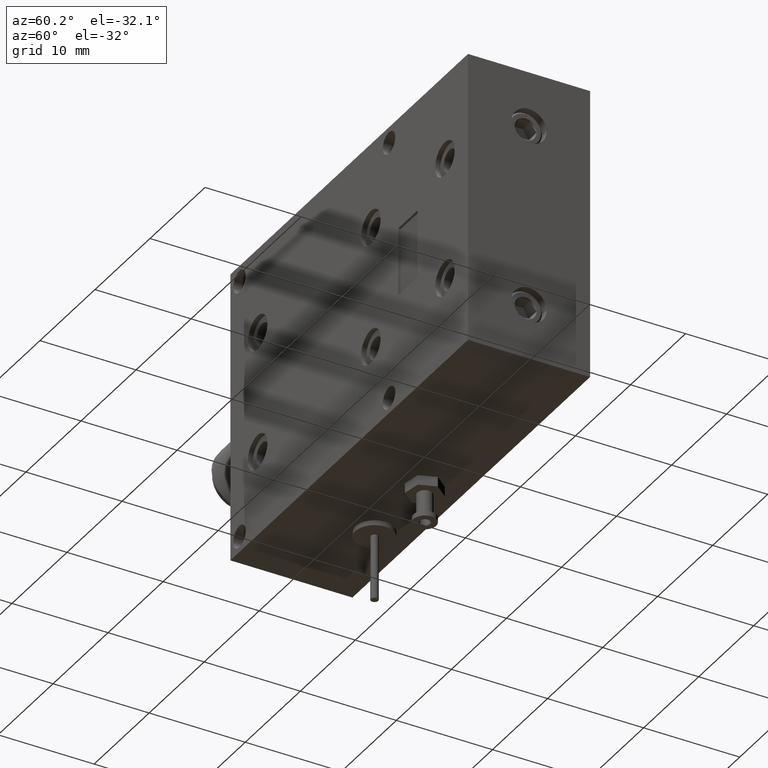
[diagram: clean part render]
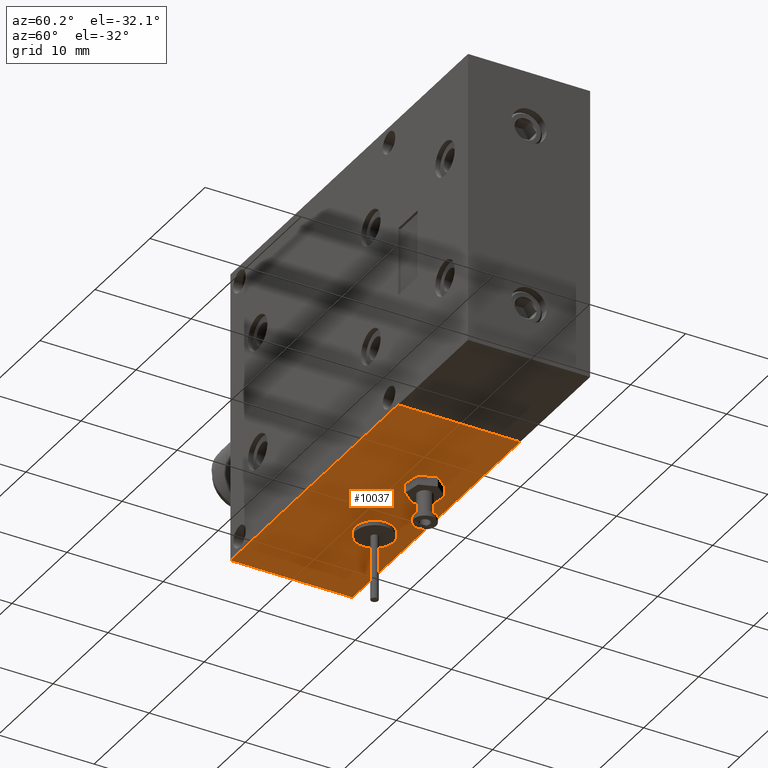
[diagram: same view with one face highlighted and labeled with its STEP entity id]
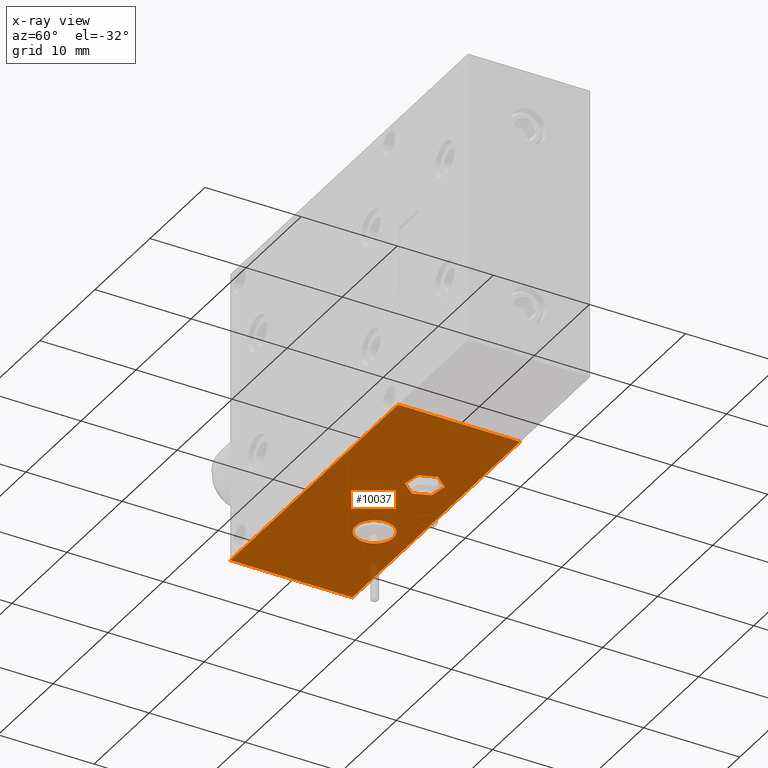
[diagram: x-ray of the same camera — body ghosted, the highlighted face saturated]
A machine part, auxiliary view. The second image highlights one B-rep face of the part: STEP entity #10037.
The next image is the same camera in x-ray: the body ghosted, the highlighted face saturated — about 1% of this face is hidden behind the body in this view.
In plain terms, the highlighted planar face has unit normal (0, -0, 1).
Its self-contained STEP definition (entity closure, byte-faithful):
#49 = VECTOR ( 'NONE', #12817, 39.37007874015748100 ) ;
#195 = VECTOR ( 'NONE', #5817, 39.37007874015747400 ) ;
#244 = ORIENTED_EDGE ( 'NONE', *, *, #7213, .F. ) ;
#344 = ORIENTED_EDGE ( 'NONE', *, *, #1367, .F. ) ;
#420 = CARTESIAN_POINT ( 'NONE',  ( -0.1799999999999999400, 0.3500000000000000300, -0.5999999999999999800 ) ) ;
#421 = ORIENTED_EDGE ( 'NONE', *, *, #1352, .F. ) ;
#466 = EDGE_CURVE ( 'NONE', #1565, #599, #12813, .T. ) ;
#523 = EDGE_CURVE ( 'NONE', #5677, #5970, #8722, .T. ) ;
#599 = VERTEX_POINT ( 'NONE', #8600 ) ;
#679 = VERTEX_POINT ( 'NONE', #8770 ) ;
#979 = CARTESIAN_POINT ( 'NONE',  ( -0.2375162163614036900, 0.2973133332287173400, -0.5999999999999999800 ) ) ;
#1326 = DIRECTION ( 'NONE',  ( 2.775557561562899400E-017, 1.358984317008243300E-032, -1.000000000000000000 ) ) ;
#1331 = CARTESIAN_POINT ( 'NONE',  ( 0.5999999999999999800, 0.5000000000000000000, -0.6000000000000002000 ) ) ;
#1352 = EDGE_CURVE ( 'NONE', #8718, #1959, #10681, .T. ) ;
#1367 = EDGE_CURVE ( 'NONE', #1959, #5677, #9011, .T. ) ;
#1418 = DIRECTION ( 'NONE',  ( -0.0000000000000000000, -1.000000000000000000, -0.0000000000000000000 ) ) ;
#1444 = VECTOR ( 'NONE', #2167, 39.37007874015748100 ) ;
#1476 = VECTOR ( 'NONE', #1418, 39.37007874015748100 ) ;
#1565 = VERTEX_POINT ( 'NONE', #5831 ) ;
#1684 = CARTESIAN_POINT ( 'NONE',  ( 0.2264877543224575500, 0.2947983511895870300, -0.6000000000000002000 ) ) ;
#1866 = VECTOR ( 'NONE', #11768, 39.37007874015747400 ) ;
#1938 = CARTESIAN_POINT ( 'NONE',  ( -0.1224837836385961600, 0.4026866667712827300, -0.5999999999999999800 ) ) ;
#1959 = VERTEX_POINT ( 'NONE', #6593 ) ;
#2167 = DIRECTION ( 'NONE',  ( 0.3403431760598529800, 0.9403012934743267800, -4.723210379196310700E-018 ) ) ;
#2224 = CARTESIAN_POINT ( 'NONE',  ( 0.1335122456775428000, 0.4052016488104132100, -0.6000000000000000900 ) ) ;
#2294 = EDGE_CURVE ( 'NONE', #8833, #3688, #5593, .T. ) ;
#2392 = PLANE ( 'NONE',  #11709 ) ;
#2465 = LINE ( 'NONE', #4516, #1476 ) ;
#2627 = CARTESIAN_POINT ( 'NONE',  ( 0.1554378469606241000, 0.2821395993866556200, -0.6000000000000002000 ) ) ;
#2789 = CARTESIAN_POINT ( 'NONE',  ( 0.2264877543224575500, 0.2947983511895870300, -0.6000000000000002000 ) ) ;
#2882 = VECTOR ( 'NONE', #8423, 39.37007874015748100 ) ;
#3340 = VERTEX_POINT ( 'NONE', #6479 ) ;
#3688 = VERTEX_POINT ( 'NONE', #979 ) ;
#3906 = EDGE_CURVE ( 'NONE', #3340, #599, #2465, .T. ) ;
#4402 = ORIENTED_EDGE ( 'NONE', *, *, #11303, .F. ) ;
#4430 = DIRECTION ( 'NONE',  ( 2.775557561562899400E-017, 1.358984317008243300E-032, -1.000000000000000000 ) ) ;
#4516 = CARTESIAN_POINT ( 'NONE',  ( -0.5999999999999998700, 0.5000000000000000000, -0.5999999999999999800 ) ) ;
#4813 = VECTOR ( 'NONE', #6583, 39.37007874015748100 ) ;
#5012 = FACE_BOUND ( 'NONE', #6195, .T. ) ;
#5077 = ORIENTED_EDGE ( 'NONE', *, *, #5415, .F. ) ;
#5171 = ORIENTED_EDGE ( 'NONE', *, *, #7030, .F. ) ;
#5223 = ORIENTED_EDGE ( 'NONE', *, *, #2294, .F. ) ;
#5415 = EDGE_CURVE ( 'NONE', #13263, #3340, #13103, .T. ) ;
#5593 = CIRCLE ( 'NONE', #9591, 0.07800000000000000000 ) ;
#5616 = DIRECTION ( 'NONE',  ( 0.7373873892487662300, 0.6754700868113170400, 0.0000000000000000000 ) ) ;
#5635 = ORIENTED_EDGE ( 'NONE', *, *, #466, .T. ) ;
#5677 = VERTEX_POINT ( 'NONE', #12665 ) ;
#5817 = DIRECTION ( 'NONE',  ( -0.9844963953900602900, -0.1754048102646509300, 1.366263207278148200E-017 ) ) ;
#5831 = CARTESIAN_POINT ( 'NONE',  ( 0.5999999999999999800, 0.0000000000000000000, -0.6000000000000002000 ) ) ;
#5970 = VERTEX_POINT ( 'NONE', #2789 ) ;
#6195 = EDGE_LOOP ( 'NONE', ( #421, #4402, #10197, #244, #11987, #344 ) ) ;
#6479 = CARTESIAN_POINT ( 'NONE',  ( -0.5999999999999998700, 0.5000000000000000000, -0.5999999999999999800 ) ) ;
#6558 = LINE ( 'NONE', #10733, #49 ) ;
#6583 = DIRECTION ( 'NONE',  ( -1.000000000000000000, 0.0000000000000000000, 2.276539994720219800E-016 ) ) ;
#6593 = CARTESIAN_POINT ( 'NONE',  ( 0.2045621530393761900, 0.4178604006133446200, -0.6000000000000002000 ) ) ;
#6648 = VERTEX_POINT ( 'NONE', #2627 ) ;
#6768 = FACE_BOUND ( 'NONE', #10202, .T. ) ;
#6851 = CIRCLE ( 'NONE', #6875, 0.07800000000000000000 ) ;
#6875 = AXIS2_PLACEMENT_3D ( 'NONE', #10766, #1326, #8512 ) ;
#7002 = CARTESIAN_POINT ( 'NONE',  ( 0.5999999999999999800, 0.5000000000000000000, -0.6000000000000002000 ) ) ;
#7007 = ORIENTED_EDGE ( 'NONE', *, *, #3906, .F. ) ;
#7030 = EDGE_CURVE ( 'NONE', #3688, #8833, #6851, .T. ) ;
#7213 = EDGE_CURVE ( 'NONE', #5970, #6648, #10283, .T. ) ;
#7323 = CARTESIAN_POINT ( 'NONE',  ( 0.5999999999999999800, 0.0000000000000000000, -0.6000000000000002000 ) ) ;
#7367 = VECTOR ( 'NONE', #7665, 39.37007874015748100 ) ;
#7442 = CARTESIAN_POINT ( 'NONE',  ( 0.1554378469606241000, 0.2821395993866556200, -0.6000000000000002000 ) ) ;
#7665 = DIRECTION ( 'NONE',  ( -0.6441532193302071900, 0.7648964832096758500, 8.939421693585171800E-018 ) ) ;
#8211 = CARTESIAN_POINT ( 'NONE',  ( 0.1089500926381667000, 0.3373412481970686200, -0.6000000000000002000 ) ) ;
#8290 = EDGE_LOOP ( 'NONE', ( #5635, #7007, #5077, #12750 ) ) ;
#8316 = EDGE_CURVE ( 'NONE', #6648, #679, #9477, .T. ) ;
#8423 = DIRECTION ( 'NONE',  ( -1.000000000000000000, 0.0000000000000000000, 2.276539994720219800E-016 ) ) ;
#8512 = DIRECTION ( 'NONE',  ( 0.7373873892487662300, 0.6754700868113170400, 0.0000000000000000000 ) ) ;
#8600 = CARTESIAN_POINT ( 'NONE',  ( -0.5999999999999998700, 0.0000000000000000000, -0.5999999999999999800 ) ) ;
#8613 = DIRECTION ( 'NONE',  ( 2.276539994720219800E-016, -0.0000000000000000000, 1.000000000000000000 ) ) ;
#8619 = CARTESIAN_POINT ( 'NONE',  ( 0.1335122456775427500, 0.4052016488104132100, -0.6000000000000002000 ) ) ;
#8695 = EDGE_CURVE ( 'NONE', #13263, #1565, #6558, .T. ) ;
#8718 = VERTEX_POINT ( 'NONE', #2224 ) ;
#8722 = LINE ( 'NONE', #9842, #10864 ) ;
#8770 = CARTESIAN_POINT ( 'NONE',  ( 0.1089500926381667000, 0.3373412481970686200, -0.6000000000000002000 ) ) ;
#8833 = VERTEX_POINT ( 'NONE', #1938 ) ;
#9011 = LINE ( 'NONE', #12810, #13260 ) ;
#9073 = LINE ( 'NONE', #8211, #1444 ) ;
#9216 = FACE_OUTER_BOUND ( 'NONE', #8290, .T. ) ;
#9477 = LINE ( 'NONE', #7442, #7367 ) ;
#9591 = AXIS2_PLACEMENT_3D ( 'NONE', #420, #4430, #5616 ) ;
#9636 = DIRECTION ( 'NONE',  ( 1.000000000000000000, 0.0000000000000000000, -2.276539994720219800E-016 ) ) ;
#9842 = CARTESIAN_POINT ( 'NONE',  ( 0.2510499073618335800, 0.3626587518029315600, -0.6000000000000002000 ) ) ;
#10037 = ADVANCED_FACE ( 'NONE', ( #5012, #6768, #9216 ), #2392, .F. ) ;
#10197 = ORIENTED_EDGE ( 'NONE', *, *, #8316, .F. ) ;
#10202 = EDGE_LOOP ( 'NONE', ( #5223, #5171 ) ) ;
#10283 = LINE ( 'NONE', #1684, #195 ) ;
#10681 = LINE ( 'NONE', #8619, #1866 ) ;
#10733 = CARTESIAN_POINT ( 'NONE',  ( 0.5999999999999999800, 0.5000000000000000000, -0.6000000000000002000 ) ) ;
#10766 = CARTESIAN_POINT ( 'NONE',  ( -0.1799999999999999400, 0.3500000000000000300, -0.5999999999999999800 ) ) ;
#10816 = DIRECTION ( 'NONE',  ( 0.6441532193302071900, -0.7648964832096757400, -8.939421693585171800E-018 ) ) ;
#10864 = VECTOR ( 'NONE', #12220, 39.37007874015748900 ) ;
#11303 = EDGE_CURVE ( 'NONE', #679, #8718, #9073, .T. ) ;
#11709 = AXIS2_PLACEMENT_3D ( 'NONE', #1331, #8613, #9636 ) ;
#11768 = DIRECTION ( 'NONE',  ( 0.9844963953900602900, 0.1754048102646508200, -1.366263207278148200E-017 ) ) ;
#11987 = ORIENTED_EDGE ( 'NONE', *, *, #523, .F. ) ;
#12220 = DIRECTION ( 'NONE',  ( -0.3403431760598530400, -0.9403012934743265600, 4.723210379196311500E-018 ) ) ;
#12665 = CARTESIAN_POINT ( 'NONE',  ( 0.2510499073618335800, 0.3626587518029315600, -0.6000000000000002000 ) ) ;
#12750 = ORIENTED_EDGE ( 'NONE', *, *, #8695, .T. ) ;
#12810 = CARTESIAN_POINT ( 'NONE',  ( 0.2045621530393761900, 0.4178604006133446200, -0.6000000000000002000 ) ) ;
#12813 = LINE ( 'NONE', #7323, #2882 ) ;
#12817 = DIRECTION ( 'NONE',  ( -0.0000000000000000000, -1.000000000000000000, -0.0000000000000000000 ) ) ;
#12873 = CARTESIAN_POINT ( 'NONE',  ( 0.5999999999999999800, 0.5000000000000000000, -0.6000000000000002000 ) ) ;
#13103 = LINE ( 'NONE', #12873, #4813 ) ;
#13260 = VECTOR ( 'NONE', #10816, 39.37007874015748900 ) ;
#13263 = VERTEX_POINT ( 'NONE', #7002 ) ;